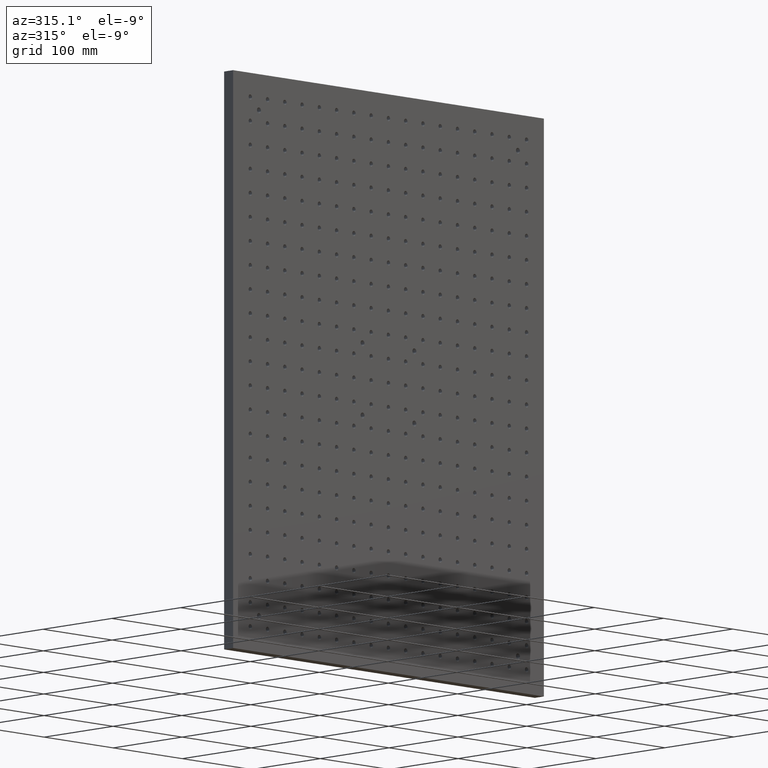
[diagram: clean part render]
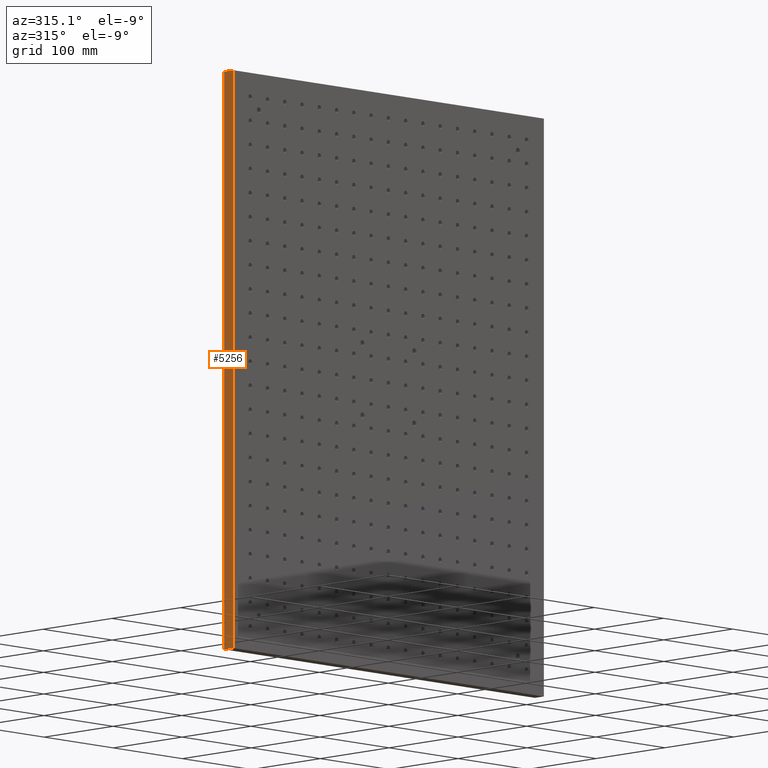
[diagram: same view with one face highlighted and labeled with its STEP entity id]
A machine part, auxiliary view. The second image highlights one B-rep face of the part: STEP entity #5256.
In plain terms, the highlighted planar face has unit normal (1, 0, -0).
Its self-contained STEP definition (entity closure, byte-faithful):
#205 = CARTESIAN_POINT ( 'NONE',  ( -224.9999999999999716, 0.000000000000000000, -300.0000000000000000 ) ) ;
#375 = ORIENTED_EDGE ( 'NONE', *, *, #8273, .F. ) ;
#659 = VERTEX_POINT ( 'NONE', #10722 ) ;
#1010 = EDGE_CURVE ( 'NONE', #659, #13014, #5673, .T. ) ;
#1300 = EDGE_CURVE ( 'NONE', #11112, #7087, #10643, .T. ) ;
#2024 = DIRECTION ( 'NONE',  ( 0.000000000000000000, 1.000000000000000000, 0.000000000000000000 ) ) ;
#2662 = VECTOR ( 'NONE', #7898, 1000.000000000000000 ) ;
#3529 = CARTESIAN_POINT ( 'NONE',  ( -224.9999999999999716, 0.000000000000000000, 0.000000000000000000 ) ) ;
#3611 = PLANE ( 'NONE',  #8304 ) ;
#4025 = CARTESIAN_POINT ( 'NONE',  ( -224.9999999999998863, 13.00000000000000178, 300.0000000000000000 ) ) ;
#4118 = ORIENTED_EDGE ( 'NONE', *, *, #1010, .T. ) ;
#4480 = FACE_OUTER_BOUND ( 'NONE', #12767, .T. ) ;
#5256 = ADVANCED_FACE ( 'NONE', ( #4480 ), #3611, .F. ) ;
#5614 = LINE ( 'NONE', #3529, #7657 ) ;
#5673 = LINE ( 'NONE', #4025, #7960 ) ;
#5768 = LINE ( 'NONE', #7690, #2662 ) ;
#5867 = ORIENTED_EDGE ( 'NONE', *, *, #1300, .F. ) ;
#6188 = VECTOR ( 'NONE', #2024, 1000.000000000000000 ) ;
#6664 = DIRECTION ( 'NONE',  ( -1.387778780781445922E-16, 0.000000000000000000, -1.000000000000000000 ) ) ;
#7087 = VERTEX_POINT ( 'NONE', #8582 ) ;
#7657 = VECTOR ( 'NONE', #7873, 1000.000000000000000 ) ;
#7665 = CARTESIAN_POINT ( 'NONE',  ( -224.9999999999999147, 13.00000000000000178, 300.0000000000000000 ) ) ;
#7690 = CARTESIAN_POINT ( 'NONE',  ( -224.9999999999999716, 13.00000000000000178, 0.000000000000000000 ) ) ;
#7873 = DIRECTION ( 'NONE',  ( -0.000000000000000000, 0.000000000000000000, -1.000000000000000000 ) ) ;
#7898 = DIRECTION ( 'NONE',  ( 0.000000000000000000, -0.000000000000000000, 1.000000000000000000 ) ) ;
#7960 = VECTOR ( 'NONE', #8354, 1000.000000000000000 ) ;
#8273 = EDGE_CURVE ( 'NONE', #7087, #13014, #5768, .T. ) ;
#8304 = AXIS2_PLACEMENT_3D ( 'NONE', #12033, #10087, #6664 ) ;
#8354 = DIRECTION ( 'NONE',  ( 0.000000000000000000, 1.000000000000000000, 0.000000000000000000 ) ) ;
#8582 = CARTESIAN_POINT ( 'NONE',  ( -224.9999999999999716, 13.00000000000000178, -300.0000000000000000 ) ) ;
#8794 = ORIENTED_EDGE ( 'NONE', *, *, #13125, .F. ) ;
#10087 = DIRECTION ( 'NONE',  ( 1.000000000000000000, 0.000000000000000000, -1.387778780781445922E-16 ) ) ;
#10643 = LINE ( 'NONE', #11920, #6188 ) ;
#10722 = CARTESIAN_POINT ( 'NONE',  ( -224.9999999999999147, 0.000000000000000000, 300.0000000000000000 ) ) ;
#11112 = VERTEX_POINT ( 'NONE', #205 ) ;
#11920 = CARTESIAN_POINT ( 'NONE',  ( -224.9999999999999716, 13.00000000000000178, -300.0000000000000000 ) ) ;
#12033 = CARTESIAN_POINT ( 'NONE',  ( -224.9999999999999716, 13.00000000000000178, -300.0000000000000000 ) ) ;
#12767 = EDGE_LOOP ( 'NONE', ( #4118, #375, #5867, #8794 ) ) ;
#13014 = VERTEX_POINT ( 'NONE', #7665 ) ;
#13125 = EDGE_CURVE ( 'NONE', #659, #11112, #5614, .T. ) ;